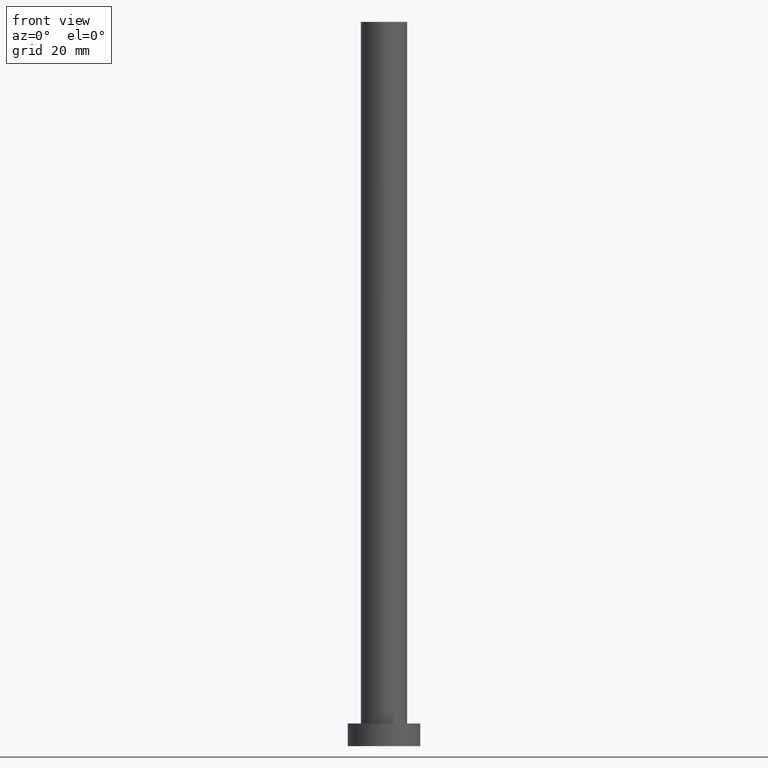
[diagram: clean part render]
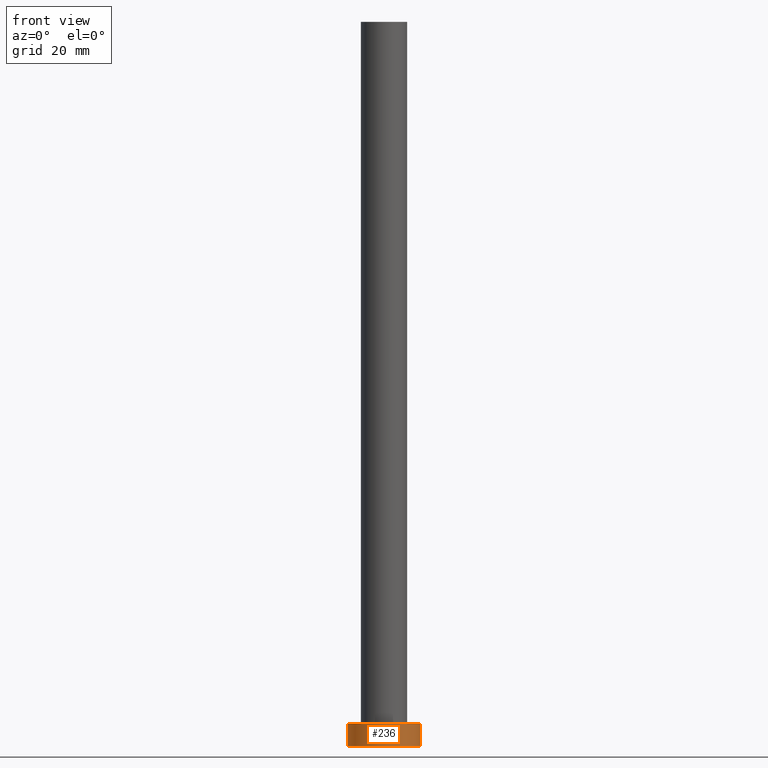
[diagram: same view with one face highlighted and labeled with its STEP entity id]
A machine part, front view. The second image highlights one B-rep face of the part: STEP entity #236.
In plain terms, the highlighted cylindrical surface (edge-blend (fillet) strip) has radius 8 mm, axis along (-0, -0, -1).
Its self-contained STEP definition (entity closure, byte-faithful):
#22 = DIRECTION ( 'NONE',  ( 0.000000000000000000, 0.000000000000000000, 1.000000000000000000 ) ) ;
#23 = VERTEX_POINT ( 'NONE', #160 ) ;
#29 = DIRECTION ( 'NONE',  ( -0.000000000000000000, -0.000000000000000000, -1.000000000000000000 ) ) ;
#30 = CARTESIAN_POINT ( 'NONE',  ( 8.000000000000000000, 9.797174393178825657E-16, 0.000000000000000000 ) ) ;
#31 = EDGE_CURVE ( 'NONE', #201, #43, #207, .T. ) ;
#40 = ORIENTED_EDGE ( 'NONE', *, *, #31, .T. ) ;
#43 = VERTEX_POINT ( 'NONE', #30 ) ;
#53 = DIRECTION ( 'NONE',  ( 1.000000000000000000, 0.000000000000000000, 0.000000000000000000 ) ) ;
#60 = EDGE_CURVE ( 'NONE', #164, #201, #184, .T. ) ;
#64 = AXIS2_PLACEMENT_3D ( 'NONE', #238, #22, #103 ) ;
#70 = AXIS2_PLACEMENT_3D ( 'NONE', #227, #92, #53 ) ;
#72 = CARTESIAN_POINT ( 'NONE',  ( -8.000000000000000000, 0.000000000000000000, 5.000000000000000000 ) ) ;
#82 = EDGE_LOOP ( 'NONE', ( #163, #241, #144, #40 ) ) ;
#90 = CARTESIAN_POINT ( 'NONE',  ( 8.000000000000000000, 9.797174393178825657E-16, 5.000000000000000000 ) ) ;
#92 = DIRECTION ( 'NONE',  ( 0.000000000000000000, 0.000000000000000000, 1.000000000000000000 ) ) ;
#95 = VECTOR ( 'NONE', #29, 1000.000000000000000 ) ;
#98 = CYLINDRICAL_SURFACE ( 'NONE', #161, 8.000000000000000000 ) ;
#103 = DIRECTION ( 'NONE',  ( 1.000000000000000000, 0.000000000000000000, 0.000000000000000000 ) ) ;
#104 = EDGE_CURVE ( 'NONE', #23, #43, #154, .T. ) ;
#122 = VECTOR ( 'NONE', #187, 1000.000000000000000 ) ;
#130 = CARTESIAN_POINT ( 'NONE',  ( -8.000000000000000000, 0.000000000000000000, 5.000000000000000000 ) ) ;
#134 = DIRECTION ( 'NONE',  ( -1.000000000000000000, 0.000000000000000000, 0.000000000000000000 ) ) ;
#144 = ORIENTED_EDGE ( 'NONE', *, *, #60, .T. ) ;
#149 = CARTESIAN_POINT ( 'NONE',  ( -8.000000000000000000, 0.000000000000000000, 0.000000000000000000 ) ) ;
#152 = CIRCLE ( 'NONE', #70, 8.000000000000000000 ) ;
#154 = LINE ( 'NONE', #90, #122 ) ;
#160 = CARTESIAN_POINT ( 'NONE',  ( 8.000000000000000000, 9.797174393178825657E-16, 5.000000000000000000 ) ) ;
#161 = AXIS2_PLACEMENT_3D ( 'NONE', #195, #192, #134 ) ;
#163 = ORIENTED_EDGE ( 'NONE', *, *, #104, .F. ) ;
#164 = VERTEX_POINT ( 'NONE', #72 ) ;
#171 = FACE_OUTER_BOUND ( 'NONE', #82, .T. ) ;
#184 = LINE ( 'NONE', #130, #95 ) ;
#187 = DIRECTION ( 'NONE',  ( -0.000000000000000000, -0.000000000000000000, -1.000000000000000000 ) ) ;
#192 = DIRECTION ( 'NONE',  ( -0.000000000000000000, -0.000000000000000000, -1.000000000000000000 ) ) ;
#195 = CARTESIAN_POINT ( 'NONE',  ( 0.000000000000000000, 0.000000000000000000, 5.000000000000000000 ) ) ;
#201 = VERTEX_POINT ( 'NONE', #149 ) ;
#207 = CIRCLE ( 'NONE', #64, 8.000000000000000000 ) ;
#222 = EDGE_CURVE ( 'NONE', #164, #23, #152, .T. ) ;
#227 = CARTESIAN_POINT ( 'NONE',  ( 0.000000000000000000, 0.000000000000000000, 5.000000000000000000 ) ) ;
#236 = ADVANCED_FACE ( 'NONE', ( #171 ), #98, .T. ) ;
#238 = CARTESIAN_POINT ( 'NONE',  ( 0.000000000000000000, 0.000000000000000000, 0.000000000000000000 ) ) ;
#241 = ORIENTED_EDGE ( 'NONE', *, *, #222, .F. ) ;